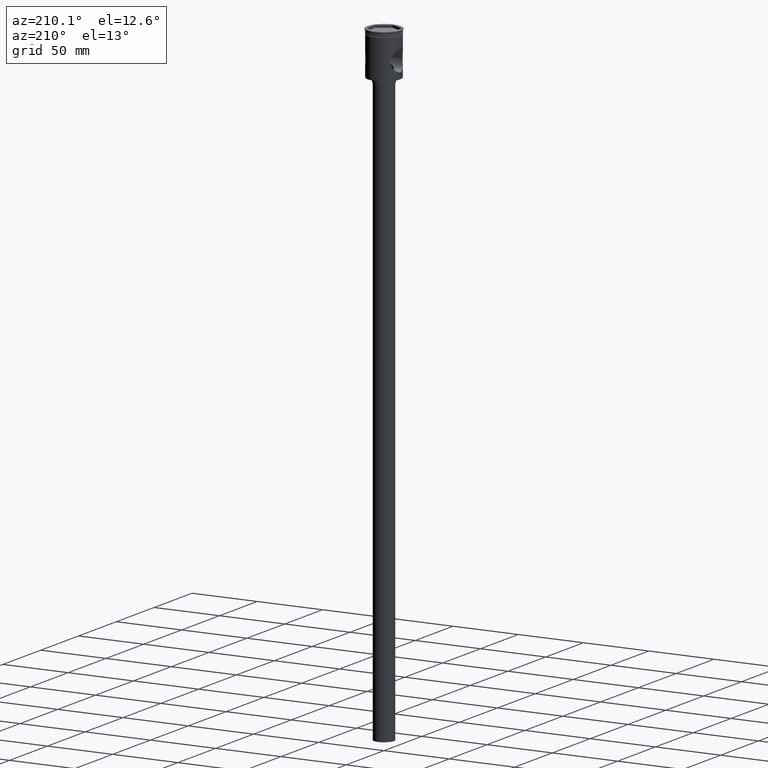
[diagram: clean part render]
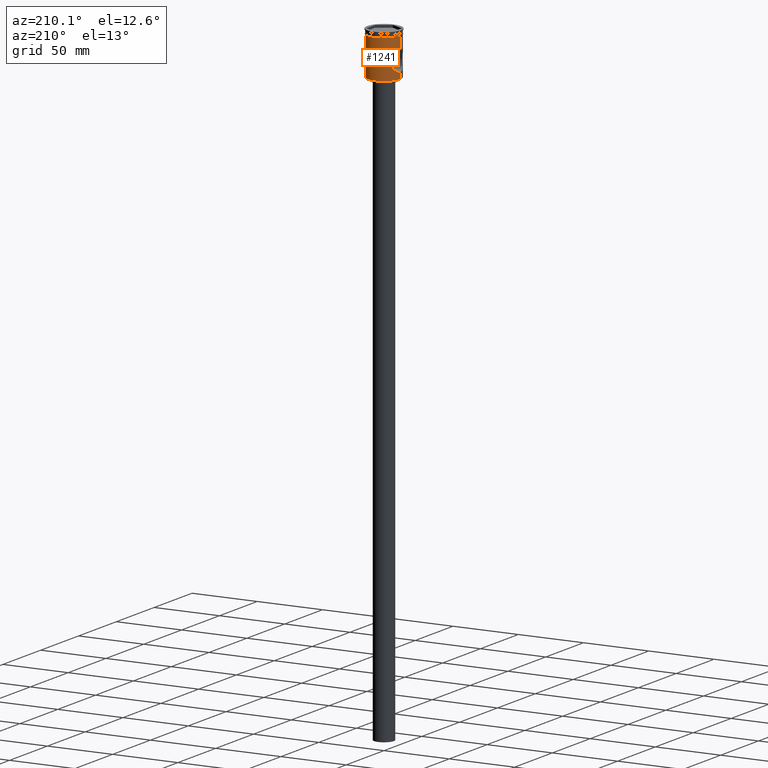
[diagram: same view with one face highlighted and labeled with its STEP entity id]
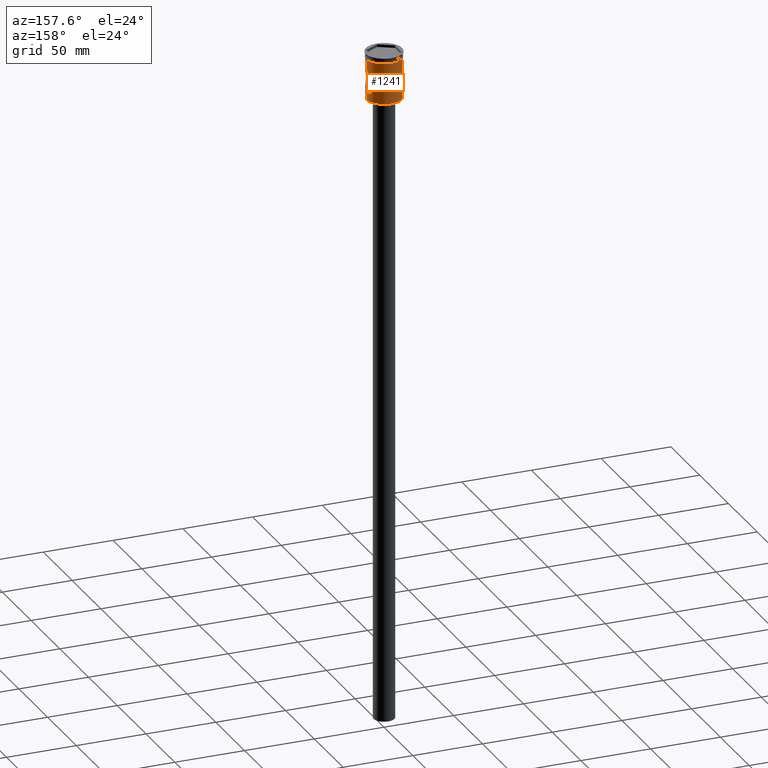
[diagram: same view with one face highlighted and labeled with its STEP entity id]
A machine part, auxiliary view. The second image highlights one B-rep face of the part: STEP entity #1241.
A second angle (auxiliary view) of the same face is appended — the face is thin or edge-on in the first view.
In plain terms, the highlighted cylindrical surface (edge-blend (fillet) strip) has radius 12.5 mm, axis along (-0, -0, 1).
Its self-contained STEP definition (entity closure, byte-faithful):
#15 = CARTESIAN_POINT ( 'NONE',  ( -10.95468395994246968, 6.033861169773390820, -15.22247198273765179 ) ) ;
#17 = CARTESIAN_POINT ( 'NONE',  ( 9.604276544737977872, 8.000492014107765115, -19.96508625629939004 ) ) ;
#23 = CARTESIAN_POINT ( 'NONE',  ( -11.97168173856675466, 3.603696557166357284, -13.35287981243517308 ) ) ;
#31 = CARTESIAN_POINT ( 'NONE',  ( -11.82492588981186543, 4.059453444830931623, -27.39848256787114167 ) ) ;
#37 = CARTESIAN_POINT ( 'NONE',  ( -11.04913184632836121, 5.848685773200739568, -25.96419292266337919 ) ) ;
#54 = CARTESIAN_POINT ( 'NONE',  ( -10.02253038761470982, 7.470924704462464483, -23.37288695449094433 ) ) ;
#80 = AXIS2_PLACEMENT_3D ( 'NONE', #807, #1490, #1258 ) ;
#87 = CARTESIAN_POINT ( 'NONE',  ( -12.50000000000000000, 1.530808498934191521E-15, -3.999999999999996447 ) ) ;
#119 = EDGE_CURVE ( 'NONE', #1111, #787, #1088, .T. ) ;
#136 = CARTESIAN_POINT ( 'NONE',  ( -11.49685725809058567, 4.911092195449596076, -14.17966420493785051 ) ) ;
#138 = CARTESIAN_POINT ( 'NONE',  ( 9.662429422409399393, 7.930242071786063995, -21.58801890745425212 ) ) ;
#144 = CARTESIAN_POINT ( 'NONE',  ( 10.41350288148657377, 6.922544769963280054, -16.45796141815630520 ) ) ;
#147 = CARTESIAN_POINT ( 'NONE',  ( -12.04078069653766647, 3.366168072378722620, -27.76202050384523190 ) ) ;
#148 = CARTESIAN_POINT ( 'NONE',  ( 9.952560460729568348, 7.563483000275685875, -17.88020587650935056 ) ) ;
#156 = CARTESIAN_POINT ( 'NONE',  ( -9.604607193058786407, 8.000095042092121744, -20.76536489131949992 ) ) ;
#157 = CARTESIAN_POINT ( 'NONE',  ( 10.24149294623592965, 7.171072586796541692, -16.91585289741309595 ) ) ;
#162 = CARTESIAN_POINT ( 'NONE',  ( -10.95618371808392233, 6.020532543485914267, -25.77431588019686615 ) ) ;
#168 = CARTESIAN_POINT ( 'NONE',  ( -10.41397768299478166, 6.921782864204723218, -24.54315654720842232 ) ) ;
#175 = LINE ( 'NONE', #661, #824 ) ;
#177 = ORIENTED_EDGE ( 'NONE', *, *, #403, .F. ) ;
#198 = LINE ( 'NONE', #1415, #644 ) ;
#230 = CARTESIAN_POINT ( 'NONE',  ( -11.58231855636714513, 4.706562070356852701, -14.02588132130155962 ) ) ;
#232 = ORIENTED_EDGE ( 'NONE', *, *, #119, .F. ) ;
#238 = EDGE_CURVE ( 'NONE', #798, #1342, #198, .T. ) ;
#240 = CARTESIAN_POINT ( 'NONE',  ( 0.000000000000000000, 0.000000000000000000, 0.000000000000000000 ) ) ;
#241 = ORIENTED_EDGE ( 'NONE', *, *, #1441, .F. ) ;
#262 = DIRECTION ( 'NONE',  ( -1.000000000000000000, 0.000000000000000000, 0.000000000000000000 ) ) ;
#275 = VERTEX_POINT ( 'NONE', #319 ) ;
#284 = CARTESIAN_POINT ( 'NONE',  ( 12.49999999999999645, -3.475392982267206074E-20, -12.50000000000000178 ) ) ;
#288 = CARTESIAN_POINT ( 'NONE',  ( -11.97255694559601125, 3.600821400007697459, -27.64858792036709545 ) ) ;
#319 = CARTESIAN_POINT ( 'NONE',  ( 12.49999999999999645, 0.000000000000000000, -28.50000000000000355 ) ) ;
#366 = CARTESIAN_POINT ( 'NONE',  ( -12.22865895483605314, 2.638290072440495848, -12.92921996348514924 ) ) ;
#372 = B_SPLINE_CURVE_WITH_KNOTS ( 'NONE', 3,
 ( #1255, #657, #438, #1402, #650, #511, #980, #1106, #988, #737, #497, #884, #1468, #628, #724, #1224, #731, #1092, #138, #612, #862, #17, #1208, #1339, #1213, #148, #607, #157, #144, #1459, #502, #1000, #393, #869, #1350, #1385, #435, #934, #1398, #1410, #1283, #1388, #1229, #284 ),
 .UNSPECIFIED., .F., .F.,
 ( 4, 2, 2, 2, 2, 2, 2, 2, 2, 2, 2, 2, 2, 2, 2, 2, 2, 2, 2, 2, 2, 4 ),
 ( 0.000000000000000000, 0.001610624516364215879, 0.003221249032728431758, 0.004831873549092647636, 0.006442498065456863515, 0.007247810323638976225, 0.008053122581821088935, 0.009663747098185310885, 0.01127437161454953631, 0.01207968387273164815, 0.01288499613091376172, 0.01449562064727799755, 0.01530093290546011807, 0.01610624516364224379, 0.01771686968000649870, 0.01932749419637075361, 0.02093811871273501199, 0.02174343097091713944, 0.02254874322909926690, 0.02415936774546352528, 0.02496468000364565273, 0.02576999226182778019 ),
 .UNSPECIFIED. ) ;
#373 = CARTESIAN_POINT ( 'NONE',  ( -9.947500648090192854, 7.573601934444265105, -17.87138436146137366 ) ) ;
#382 = CARTESIAN_POINT ( 'NONE',  ( -9.780592607289706919, 7.784260626568318742, -22.36450508717212671 ) ) ;
#391 = EDGE_LOOP ( 'NONE', ( #760, #752, #177, #1363, #926, #232, #1379, #241 ) ) ;
#393 = CARTESIAN_POINT ( 'NONE',  ( 11.50119995780600846, 4.917095492503141152, -14.16884486330757120 ) ) ;
#403 = EDGE_CURVE ( 'NONE', #798, #1430, #682, .T. ) ;
#435 = CARTESIAN_POINT ( 'NONE',  ( 12.03968295628938812, 3.370349911399050047, -13.23978673405736117 ) ) ;
#438 = CARTESIAN_POINT ( 'NONE',  ( 12.46447579769007774, 1.079199628273470157, -28.44481018307721243 ) ) ;
#454 = EDGE_CURVE ( 'NONE', #1406, #1502, #1345, .T. ) ;
#482 = CARTESIAN_POINT ( 'NONE',  ( -11.32051845556725489, 5.304942531477344403, -14.50641544213543455 ) ) ;
#484 = DIRECTION ( 'NONE',  ( -0.000000000000000000, -0.000000000000000000, 1.000000000000000000 ) ) ;
#486 = CARTESIAN_POINT ( 'NONE',  ( -10.76964293615448653, 6.354292206984882618, -15.61311065325000591 ) ) ;
#497 = CARTESIAN_POINT ( 'NONE',  ( 10.95759851502932669, 6.017955333637137194, -25.77724630296188479 ) ) ;
#501 = CARTESIAN_POINT ( 'NONE',  ( -10.68057655226026803, 6.496405684036826500, -25.17560278568680943 ) ) ;
#502 = CARTESIAN_POINT ( 'NONE',  ( 10.95569943340932717, 6.032167288263485361, -15.22028665405100512 ) ) ;
#511 = CARTESIAN_POINT ( 'NONE',  ( 11.97893811598799729, 3.606041726093997646, -27.66040104288469692 ) ) ;
#521 = CARTESIAN_POINT ( 'NONE',  ( -9.953764986108037505, 7.561899278404374591, -23.12434326371112192 ) ) ;
#530 = CARTESIAN_POINT ( 'NONE',  ( 12.49999999999999645, -3.475392982267206074E-20, -12.50000000000000178 ) ) ;
#554 = CARTESIAN_POINT ( 'NONE',  ( -12.49999999999999645, 0.000000000000000000, -28.50000000000000355 ) ) ;
#607 = CARTESIAN_POINT ( 'NONE',  ( 10.02037738876441253, 7.473797691934480625, -17.63469963449613331 ) ) ;
#610 = CARTESIAN_POINT ( 'NONE',  ( -12.45680753857803147, 1.072351860696458381, -12.56763034230890774 ) ) ;
#612 = CARTESIAN_POINT ( 'NONE',  ( 9.616846497738414712, 7.985458352474513966, -21.05224936486945353 ) ) ;
#618 = CARTESIAN_POINT ( 'NONE',  ( -9.650481006454381117, 7.945901119098953025, -19.42646661241498052 ) ) ;
#619 = VECTOR ( 'NONE', #484, 1000.000000000000000 ) ;
#628 = CARTESIAN_POINT ( 'NONE',  ( 10.41453676133786033, 6.920961814154462211, -24.54462048307798128 ) ) ;
#635 = CARTESIAN_POINT ( 'NONE',  ( 0.000000000000000000, 0.000000000000000000, -33.30000000000011084 ) ) ;
#639 = CARTESIAN_POINT ( 'NONE',  ( -12.49999999999999645, 1.530843252841608374E-15, -12.50000000000000178 ) ) ;
#644 = VECTOR ( 'NONE', #1263, 1000.000000000000000 ) ;
#650 = CARTESIAN_POINT ( 'NONE',  ( 12.22805391727019675, 2.640680350465369308, -28.06978779834291515 ) ) ;
#657 = CARTESIAN_POINT ( 'NONE',  ( 12.49999999999999289, 0.5455086926773380362, -28.50000000000000000 ) ) ;
#661 = CARTESIAN_POINT ( 'NONE',  ( -12.49999999999999645, 1.530808498934191127E-15, 0.000000000000000000 ) ) ;
#682 = B_SPLINE_CURVE_WITH_KNOTS ( 'NONE', 3,
 ( #840, #834, #1307, #610, #715, #1442, #366, #722, #23, #1204, #1098, #230, #136, #482, #1091, #15, #486, #979, #1447, #373, #1482, #618, #1236, #156, #1113, #1104, #1338, #382, #769, #521, #54, #746, #168, #501, #999, #162, #37, #1365, #1212, #993, #31, #288, #147, #1462, #1467, #883, #1348, #1244, #736, #1358 ),
 .UNSPECIFIED., .F., .F.,
 ( 4, 2, 2, 2, 2, 2, 2, 2, 2, 2, 2, 2, 2, 2, 2, 2, 2, 2, 2, 2, 2, 2, 2, 2, 4 ),
 ( 0.02576999226182778366, 0.02657439273090745832, 0.02737879319998713298, 0.02898759413814647884, 0.02979199460722615350, 0.03059639507630582123, 0.03140079554538549589, 0.03220519601446516361, 0.03381399695262450600, 0.03542279789078384145, 0.03703159882894318383, 0.03864039976710252622, 0.03944480023618218700, 0.04024920070526185473, 0.04105360117434152245, 0.04185800164342118324, 0.04346680258158051868, 0.04427120305066018641, 0.04507560351973985413, 0.04668440445789921039, 0.04748880492697887812, 0.04829320539605855278, 0.04990200633421790211, 0.05070640680329757677, 0.05151080727237725143 ),
 .UNSPECIFIED. ) ;
#711 = DIRECTION ( 'NONE',  ( -0.000000000000000000, -0.000000000000000000, 1.000000000000000000 ) ) ;
#713 = LINE ( 'NONE', #1432, #1009 ) ;
#715 = CARTESIAN_POINT ( 'NONE',  ( -12.43066710745117298, 1.341388092945101862, -12.60866053316501834 ) ) ;
#722 = CARTESIAN_POINT ( 'NONE',  ( -12.04102128605738464, 3.365482873782087658, -13.23757297846051451 ) ) ;
#724 = CARTESIAN_POINT ( 'NONE',  ( 10.24633185769106802, 7.164154995734958398, -24.09758546550434488 ) ) ;
#731 = CARTESIAN_POINT ( 'NONE',  ( 9.825351555881612242, 7.728608913096384647, -22.63340818634064533 ) ) ;
#736 = CARTESIAN_POINT ( 'NONE',  ( -12.49999999999999645, 0.2724455289350976028, -28.50000000000000000 ) ) ;
#737 = CARTESIAN_POINT ( 'NONE',  ( 11.04973041360231534, 5.847541344671410180, -25.96539333561140950 ) ) ;
#746 = CARTESIAN_POINT ( 'NONE',  ( -10.24506394556385125, 7.166030281330027840, -24.09455026104629738 ) ) ;
#752 = ORIENTED_EDGE ( 'NONE', *, *, #1137, .T. ) ;
#760 = ORIENTED_EDGE ( 'NONE', *, *, #454, .T. ) ;
#769 = CARTESIAN_POINT ( 'NONE',  ( -9.833011243020195025, 7.718267162390876734, -22.62081358739451176 ) ) ;
#787 = VERTEX_POINT ( 'NONE', #1218 ) ;
#798 = VERTEX_POINT ( 'NONE', #639 ) ;
#801 = AXIS2_PLACEMENT_3D ( 'NONE', #240, #711, #981 ) ;
#807 = CARTESIAN_POINT ( 'NONE',  ( 0.000000000000000000, 0.000000000000000000, -3.999999999999996447 ) ) ;
#824 = VECTOR ( 'NONE', #1135, 1000.000000000000000 ) ;
#827 = FACE_OUTER_BOUND ( 'NONE', #391, .T. ) ;
#834 = CARTESIAN_POINT ( 'NONE',  ( -12.49999999999999822, 0.2686376769289312016, -12.50000000000000533 ) ) ;
#840 = CARTESIAN_POINT ( 'NONE',  ( -12.49999999999999645, 1.530843252841608374E-15, -12.50000000000000178 ) ) ;
#862 = CARTESIAN_POINT ( 'NONE',  ( 9.604895432773121300, 7.999748985399197210, -20.77841958597585403 ) ) ;
#868 = DIRECTION ( 'NONE',  ( -0.000000000000000000, -0.000000000000000000, 1.000000000000000000 ) ) ;
#869 = CARTESIAN_POINT ( 'NONE',  ( 11.74563317290944831, 4.282692903467038903, -13.73805650301568093 ) ) ;
#883 = CARTESIAN_POINT ( 'NONE',  ( -12.42914744973298191, 1.355224675475571683, -28.38894657095907803 ) ) ;
#884 = CARTESIAN_POINT ( 'NONE',  ( 10.77326865999855166, 6.342037053953381687, -25.38299917530804350 ) ) ;
#926 = ORIENTED_EDGE ( 'NONE', *, *, #1392, .F. ) ;
#934 = CARTESIAN_POINT ( 'NONE',  ( 12.22838080166956054, 2.639999966342853277, -12.92964855857681350 ) ) ;
#973 = DIRECTION ( 'NONE',  ( -0.000000000000000000, -0.000000000000000000, 1.000000000000000000 ) ) ;
#979 = CARTESIAN_POINT ( 'NONE',  ( -10.41381587689204302, 6.922042856426296353, -16.45722377159888694 ) ) ;
#980 = CARTESIAN_POINT ( 'NONE',  ( 11.83084558445469980, 4.061114290533304860, -27.41204444593460821 ) ) ;
#981 = DIRECTION ( 'NONE',  ( 1.000000000000000000, 0.000000000000000000, 0.000000000000000000 ) ) ;
#988 = CARTESIAN_POINT ( 'NONE',  ( 11.32278361962054802, 5.310903790031502147, -26.50427824932999243 ) ) ;
#990 = CARTESIAN_POINT ( 'NONE',  ( 12.49999999999999645, 0.000000000000000000, 0.000000000000000000 ) ) ;
#992 = CARTESIAN_POINT ( 'NONE',  ( -12.49999999999999645, 1.530808498934191127E-15, -33.30000000000011084 ) ) ;
#993 = CARTESIAN_POINT ( 'NONE',  ( -11.74577852983650494, 4.282367724400621967, -27.26220930574858059 ) ) ;
#999 = CARTESIAN_POINT ( 'NONE',  ( -10.77171733329285530, 6.344673314144587017, -25.37958406506655251 ) ) ;
#1000 = CARTESIAN_POINT ( 'NONE',  ( 11.32358097886961446, 5.309510908151877651, -14.49404386253077881 ) ) ;
#1009 = VECTOR ( 'NONE', #973, 1000.000000000000000 ) ;
#1056 = AXIS2_PLACEMENT_3D ( 'NONE', #635, #868, #262 ) ;
#1088 = LINE ( 'NONE', #990, #619 ) ;
#1091 = CARTESIAN_POINT ( 'NONE',  ( -11.22925266099212571, 5.494954958430610326, -14.68017047912132789 ) ) ;
#1092 = CARTESIAN_POINT ( 'NONE',  ( 9.695983281617307270, 7.889400511741192723, -21.85205995452213301 ) ) ;
#1098 = CARTESIAN_POINT ( 'NONE',  ( -11.74602063590885059, 4.281685285502878635, -13.73737400827888422 ) ) ;
#1104 = CARTESIAN_POINT ( 'NONE',  ( -9.660877953051818068, 7.932130301633682379, -21.57471352266809106 ) ) ;
#1106 = CARTESIAN_POINT ( 'NONE',  ( 11.50038868166273787, 4.919615502726670364, -26.82980181432884237 ) ) ;
#1107 = CIRCLE ( 'NONE', #80, 12.50000000000000000 ) ;
#1111 = VERTEX_POINT ( 'NONE', #530 ) ;
#1113 = CARTESIAN_POINT ( 'NONE',  ( -9.615781582082339796, 7.986738915949612938, -21.03451077291008531 ) ) ;
#1135 = DIRECTION ( 'NONE',  ( -0.000000000000000000, -0.000000000000000000, 1.000000000000000000 ) ) ;
#1137 = EDGE_CURVE ( 'NONE', #1502, #1430, #175, .T. ) ;
#1204 = CARTESIAN_POINT ( 'NONE',  ( -11.82426725651903610, 4.061341696050350336, -13.60264837205234301 ) ) ;
#1208 = CARTESIAN_POINT ( 'NONE',  ( 9.650015180279874372, 7.946443617263751591, -19.43182631452544484 ) ) ;
#1212 = CARTESIAN_POINT ( 'NONE',  ( -11.49979938796715118, 4.920626020369353704, -26.82866744699284567 ) ) ;
#1213 = CARTESIAN_POINT ( 'NONE',  ( 9.831927431485986801, 7.719646222588846030, -18.38418844340872127 ) ) ;
#1218 = CARTESIAN_POINT ( 'NONE',  ( 12.50000000000000000, 0.000000000000000000, -3.999999999999996447 ) ) ;
#1224 = CARTESIAN_POINT ( 'NONE',  ( 9.951847861737379120, 7.567903109691757280, -23.14472692481474425 ) ) ;
#1229 = CARTESIAN_POINT ( 'NONE',  ( 12.49999999999999822, 0.2689421781267094524, -12.50000000000000178 ) ) ;
#1236 = CARTESIAN_POINT ( 'NONE',  ( -9.604845950803452936, 7.999808392904742327, -19.96072037956296086 ) ) ;
#1241 = ADVANCED_FACE ( 'NONE', ( #827 ), #1303, .T. ) ;
#1244 = CARTESIAN_POINT ( 'NONE',  ( -12.49104983426664717, 0.5449417703514869427, -28.48603655335807261 ) ) ;
#1255 = CARTESIAN_POINT ( 'NONE',  ( 12.49999999999999645, 0.000000000000000000, -28.50000000000000355 ) ) ;
#1258 = DIRECTION ( 'NONE',  ( 1.000000000000000000, 0.000000000000000000, 0.000000000000000000 ) ) ;
#1263 = DIRECTION ( 'NONE',  ( -0.000000000000000000, -0.000000000000000000, 1.000000000000000000 ) ) ;
#1280 = CARTESIAN_POINT ( 'NONE',  ( 12.49999999999999645, 0.000000000000000000, -33.30000000000011084 ) ) ;
#1283 = CARTESIAN_POINT ( 'NONE',  ( 12.45636595211378861, 1.077990071471292666, -12.56832314098377346 ) ) ;
#1303 = CYLINDRICAL_SURFACE ( 'NONE', #801, 12.49999999999999645 ) ;
#1307 = CARTESIAN_POINT ( 'NONE',  ( -12.49134899006260824, 0.5368360781239408519, -12.51349676487751594 ) ) ;
#1338 = CARTESIAN_POINT ( 'NONE',  ( -9.694572521403607368, 7.891132293869996595, -21.84205955273028010 ) ) ;
#1339 = CARTESIAN_POINT ( 'NONE',  ( 9.778867081615890910, 7.786427190026567580, -18.64438907348872476 ) ) ;
#1342 = VERTEX_POINT ( 'NONE', #87 ) ;
#1345 = CIRCLE ( 'NONE', #1056, 12.49999999999999645 ) ;
#1348 = CARTESIAN_POINT ( 'NONE',  ( -12.45574482229450020, 1.085222749987466040, -28.43070192023093412 ) ) ;
#1350 = CARTESIAN_POINT ( 'NONE',  ( 11.82354718861211573, 4.063371894608730273, -13.60388813298232513 ) ) ;
#1358 = CARTESIAN_POINT ( 'NONE',  ( -12.49999999999999645, 0.000000000000000000, -28.50000000000000355 ) ) ;
#1363 = ORIENTED_EDGE ( 'NONE', *, *, #238, .T. ) ;
#1365 = CARTESIAN_POINT ( 'NONE',  ( -11.32275814528974500, 5.311017539796694997, -26.50426606429732601 ) ) ;
#1379 = ORIENTED_EDGE ( 'NONE', *, *, #1469, .F. ) ;
#1385 = CARTESIAN_POINT ( 'NONE',  ( 11.97039897339418246, 3.607881330226543781, -13.35503377591462559 ) ) ;
#1388 = CARTESIAN_POINT ( 'NONE',  ( 12.49132987171840270, 0.5383245889663403894, -12.51352599534948418 ) ) ;
#1392 = EDGE_CURVE ( 'NONE', #787, #1342, #1107, .T. ) ;
#1398 = CARTESIAN_POINT ( 'NONE',  ( 12.32774079225238495, 2.134726252461476292, -12.77147006255823136 ) ) ;
#1402 = CARTESIAN_POINT ( 'NONE',  ( 12.32937529947440147, 2.124696089697953649, -28.23112845639077761 ) ) ;
#1406 = VERTEX_POINT ( 'NONE', #1280 ) ;
#1410 = CARTESIAN_POINT ( 'NONE',  ( 12.43000214087199851, 1.347259841825428239, -12.60970857887207153 ) ) ;
#1415 = CARTESIAN_POINT ( 'NONE',  ( -12.49999999999999645, 1.530808498934191127E-15, 0.000000000000000000 ) ) ;
#1430 = VERTEX_POINT ( 'NONE', #554 ) ;
#1432 = CARTESIAN_POINT ( 'NONE',  ( 12.49999999999999645, 0.000000000000000000, 0.000000000000000000 ) ) ;
#1441 = EDGE_CURVE ( 'NONE', #1406, #275, #713, .T. ) ;
#1442 = CARTESIAN_POINT ( 'NONE',  ( -12.32814927920563264, 2.133064077394900337, -12.77081634138414401 ) ) ;
#1447 = CARTESIAN_POINT ( 'NONE',  ( -10.24171529436143402, 7.170737983946684935, -16.91536847051583692 ) ) ;
#1459 = CARTESIAN_POINT ( 'NONE',  ( 10.77000853576665840, 6.353706358841936463, -15.61224821672883678 ) ) ;
#1462 = CARTESIAN_POINT ( 'NONE',  ( -12.22681975302657520, 2.645907749991195601, -28.06777968347508434 ) ) ;
#1467 = CARTESIAN_POINT ( 'NONE',  ( -12.32614486164619372, 2.144181392186815138, -28.22599079984303927 ) ) ;
#1468 = CARTESIAN_POINT ( 'NONE',  ( 10.68141965030587848, 6.495024738260809727, -25.17753358840528932 ) ) ;
#1469 = EDGE_CURVE ( 'NONE', #275, #1111, #372, .T. ) ;
#1482 = CARTESIAN_POINT ( 'NONE',  ( -9.823930086259025529, 7.730428572254550268, -18.37155159375936719 ) ) ;
#1490 = DIRECTION ( 'NONE',  ( -0.000000000000000000, -0.000000000000000000, 1.000000000000000000 ) ) ;
#1502 = VERTEX_POINT ( 'NONE', #992 ) ;